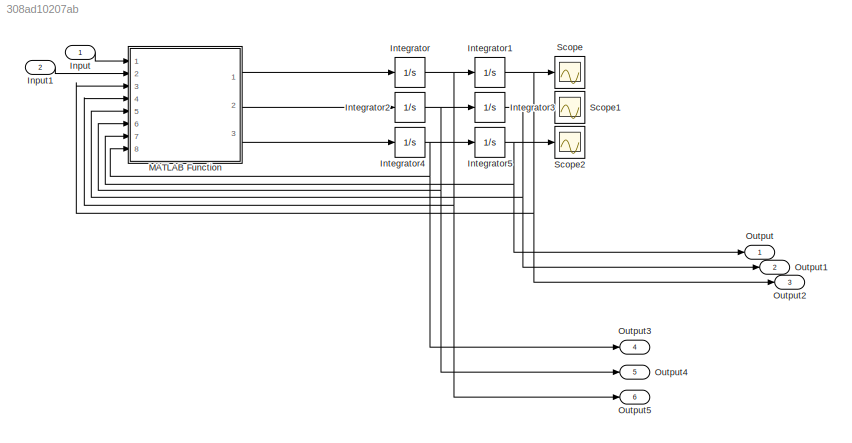
MODEL slx_308ad10207ab
KIND model
CONFIG AbsTol = auto
CONFIG EnableMultiTasking = off
CONFIG FixedStep = auto
CONFIG MaxStep = auto
CONFIG MinStep = auto
CONFIG RelTol = 1e-3
CONFIG SampleTimeConstraint = Unconstrained
CONFIG Solver = VariableStepAuto
CONFIG SolverName = VariableStepAuto
CONFIG StartTime = 0.0
CONFIG StopTime = 10.0
BLOCK [Inport] Input
  IconDisplay = Port number
  PortDimensions = 1
BLOCK [Inport] Input1
  IconDisplay = Port number
  Port = 2
  PortDimensions = 1
BLOCK [Integrator] Integrator
  Ports = [1, 1]
BLOCK [Integrator] Integrator1
  Ports = [1, 1]
BLOCK [Integrator] Integrator2
  Ports = [1, 1]
BLOCK [Integrator] Integrator3
  InitialCondition = 1
  Ports = [1, 1]
BLOCK [Integrator] Integrator4
  Ports = [1, 1]
BLOCK [Integrator] Integrator5
  Ports = [1, 1]
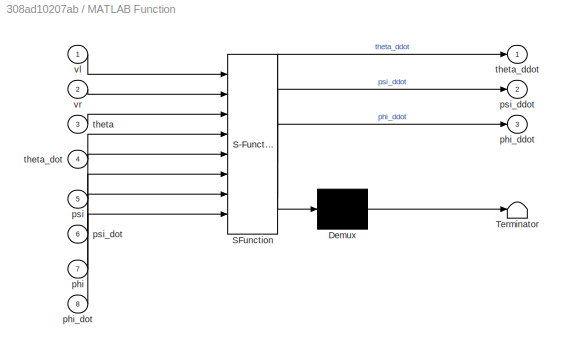
BLOCK [SubSystem] MATLAB Function
  ErrorFcn = Stateflow.Translate.translate
  PermitHierarchicalResolution = ExplicitOnly
  Ports = [8, 3]
  RequestExecContextInheritance = off
  SFBlockType = MATLAB Function
  TreatAsAtomicUnit = on
BLOCK [Demux] MATLAB Function/ Demux 
  Outputs = 1
  Ports = [1, 1]
BLOCK [S-Function] MATLAB Function/ SFunction 
  EnableBusSupport = on
  FunctionName = sf_sfun
  PortCounts = [8 4]
  Ports = [8, 4]
  SFcnIsStateOwnerBlock = off
  SFunctionDeploymentMode = off
  Tag = Stateflow S-Function CSD_final 2
BLOCK [Terminator] MATLAB Function/ Terminator 
BLOCK [Inport] MATLAB Function/phi
  IconDisplay = Port number
  Port = 7
BLOCK [Outport] MATLAB Function/phi_ddot
  IconDisplay = Port number
  Port = 3
BLOCK [Inport] MATLAB Function/phi_dot
  IconDisplay = Port number
  Port = 8
BLOCK [Inport] MATLAB Function/psi
  IconDisplay = Port number
  Port = 5
BLOCK [Outport] MATLAB Function/psi_ddot
  IconDisplay = Port number
  Port = 2
BLOCK [Inport] MATLAB Function/psi_dot
  IconDisplay = Port number
  Port = 6
BLOCK [Inport] MATLAB Function/theta
  IconDisplay = Port number
  Port = 3
BLOCK [Outport] MATLAB Function/theta_ddot
  IconDisplay = Port number
BLOCK [Inport] MATLAB Function/theta_dot
  IconDisplay = Port number
  Port = 4
BLOCK [Inport] MATLAB Function/vl
  IconDisplay = Port number
BLOCK [Inport] MATLAB Function/vr
  IconDisplay = Port number
  Port = 2
BLOCK [Outport] Output
  IconDisplay = Port number
BLOCK [Outport] Output1
  IconDisplay = Port number
  Port = 2
BLOCK [Outport] Output2
  IconDisplay = Port number
  Port = 3
BLOCK [Outport] Output3
  IconDisplay = Port number
  Port = 4
BLOCK [Outport] Output4
  IconDisplay = Port number
  Port = 5
BLOCK [Outport] Output5
  IconDisplay = Port number
  Port = 6
BLOCK [Scope] Scope
  Floating = off
  NumInputPorts = 1
  Ports = [1]
  ScopeSpecificationString = Simulink.scopes.TimeScopeBlockCfg('CurrentConfiguration', extmgr.ConfigurationSet(extmgr.Configuration('Core','General UI',true),extmgr.Configuration('Core','Source UI',true),extmgr.Configuration('Sources','WiredSimulink',true),extmgr.Configuration('Visuals','Time Domain',true,'SerializedDisplays',{struct('MinYLimReal','-0.50068','MaxYLimReal','4.50609','YLabelReal','','MinYLimMag','0.00000','MaxY...<+1386ch>
BLOCK [Scope] Scope1
  Floating = off
  NumInputPorts = 1
  Ports = [1]
  ScopeSpecificationString = Simulink.scopes.TimeScopeBlockCfg('CurrentConfiguration', extmgr.ConfigurationSet(extmgr.Configuration('Core','General UI',true),extmgr.Configuration('Core','Source UI',true),extmgr.Configuration('Sources','WiredSimulink',true,'DataLoggingVariableName','ScopeData1'),extmgr.Configuration('Visuals','Time Domain',true,'SerializedDisplays',{struct('MinYLimReal','0.5481','MaxYLimReal','5.06708','YLabel...<+1421ch>
BLOCK [Scope] Scope2
  Floating = off
  NumInputPorts = 1
  Ports = [1]
  ScopeSpecificationString = Simulink.scopes.TimeScopeBlockCfg('CurrentConfiguration', extmgr.ConfigurationSet(extmgr.Configuration('Core','General UI',true),extmgr.Configuration('Core','Source UI',true),extmgr.Configuration('Sources','WiredSimulink',true,'DataLoggingVariableName','ScopeData2'),extmgr.Configuration('Visuals','Time Domain',true,'SerializedDisplays',{struct('MinYLimReal','-1.00000','MaxYLimReal','1.00000','YLab...<+1427ch>
LINE Input1:1 -> MATLAB Function:2
LINE Input:1 -> MATLAB Function:1
NET Integrator1:1 -> MATLAB Function:3, Output2:1, Scope:1
NET Integrator2:1 -> Integrator3:1, MATLAB Function:6, Output4:1
NET Integrator3:1 -> MATLAB Function:5, Output1:1, Scope1:1
NET Integrator4:1 -> Integrator5:1, MATLAB Function:8, Output3:1
NET Integrator5:1 -> MATLAB Function:7, Output:1, Scope2:1
NET Integrator:1 -> Integrator1:1, MATLAB Function:4, Output5:1
LINE MATLAB Function:1 -> Integrator:1
LINE MATLAB Function:2 -> Integrator2:1
LINE MATLAB Function:3 -> Integrator4:1
note: NET lines group one-source signal fan-out (src -> all destinations, sorted); 1:1 wires keep LINE
CHART MATLAB Function states=1 transitions=1
  STATE_LABEL 'eML_blk_kernel()'
  STATE_LABEL 'SCRIPT:\nfunction [theta_ddot, psi_ddot, phi_ddot] = fcn(vl, vr, theta, theta_dot, psi, psi_dot, phi, phi_dot)\n    % mass of robot (kg)\n    M = 0.6;\n\n    % mass of wheels (kg)\n    m = 0.03;\n\n    % distance to center of mass (m)\n    L = 0.125;\n\n    % Wheel radius (m)\n    R = 0.028;\n\n    % Body width (m)\n    W = 0.126;\n\n    % Body depth (m)\n    D = 0.07;\n\n    % Acceleration due to gravity (m/s^2)\n   ...<+1389ch>'
